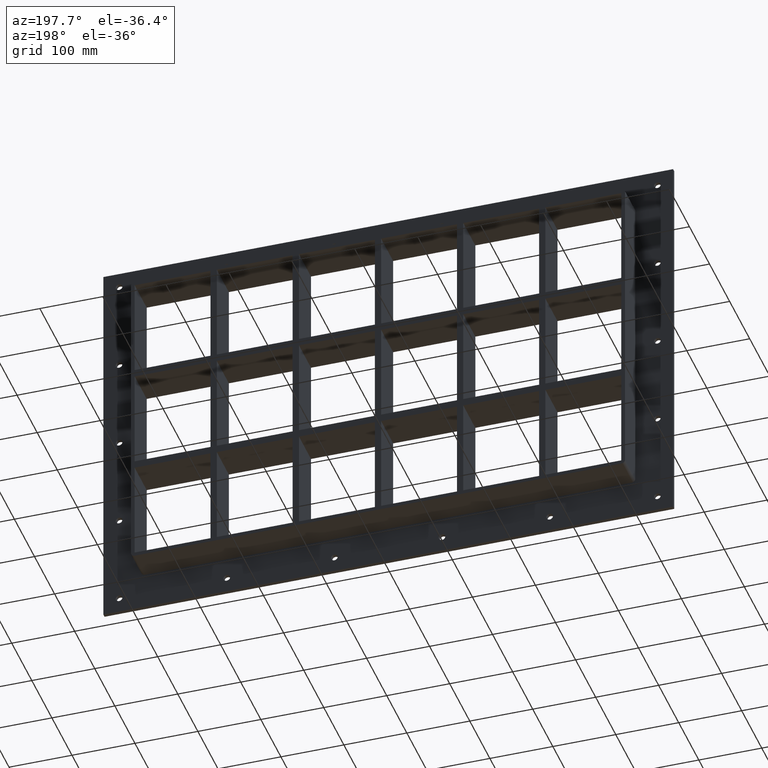
[diagram: clean part render]
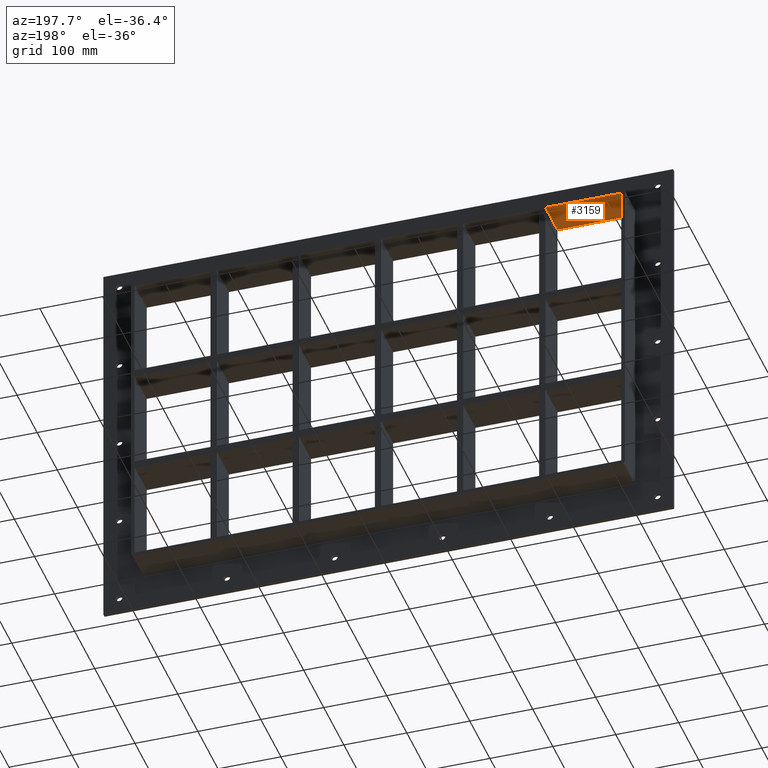
[diagram: same view with one face highlighted and labeled with its STEP entity id]
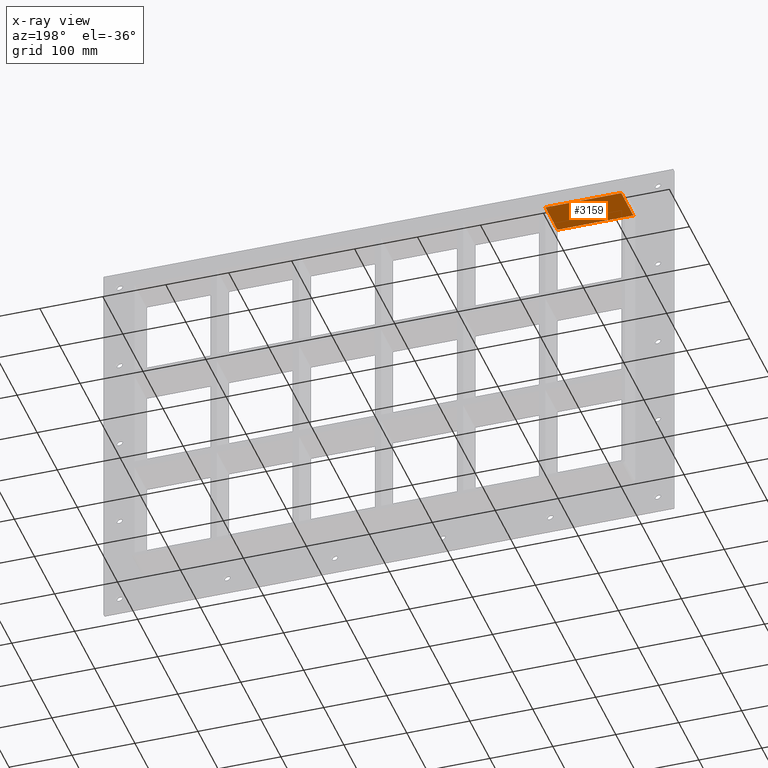
[diagram: x-ray of the same camera — body ghosted, the highlighted face saturated]
A machine part, auxiliary view. The second image highlights one B-rep face of the part: STEP entity #3159.
The next image is the same camera in x-ray: the body ghosted, the highlighted face saturated — about 0% of this face is hidden behind the body in this view.
In plain terms, the highlighted planar face has unit normal (0, 0, 1).
Its self-contained STEP definition (entity closure, byte-faithful):
#1058=CARTESIAN_POINT('',(-386.50000000000006,57.0,251.25));
#1059=VERTEX_POINT('',#1058);
#1066=CARTESIAN_POINT('',(-386.50000000000006,-3.0,251.25));
#1067=VERTEX_POINT('',#1066);
#1068=CARTESIAN_POINT('',(-386.50000000000011,-3.0,251.25));
#1069=DIRECTION('',(0.0,1.0,0.0));
#1070=VECTOR('',#1069,60.0);
#1071=LINE('',#1068,#1070);
#1072=EDGE_CURVE('',#1067,#1059,#1071,.T.);
#1399=CARTESIAN_POINT('',(-266.00000000000216,-3.0,251.25));
#1400=VERTEX_POINT('',#1399);
#1407=CARTESIAN_POINT('',(-266.00000000000216,57.0,251.25));
#1408=VERTEX_POINT('',#1407);
#1409=CARTESIAN_POINT('',(-266.00000000000222,57.000000000000007,251.25));
#1410=DIRECTION('',(0.0,-1.0,0.0));
#1411=VECTOR('',#1410,60.000000000000007);
#1412=LINE('',#1409,#1411);
#1413=EDGE_CURVE('',#1408,#1400,#1412,.T.);
#1924=CARTESIAN_POINT('',(-266.00000000000216,57.0,251.25));
#1925=DIRECTION('',(-1.0,0.0,0.0));
#1926=VECTOR('',#1925,120.4999999999979);
#1927=LINE('',#1924,#1926);
#1928=EDGE_CURVE('',#1408,#1059,#1927,.T.);
#2583=CARTESIAN_POINT('',(-386.50000000000006,-3.0,251.25));
#2584=DIRECTION('',(1.0,0.0,0.0));
#2585=VECTOR('',#2584,120.4999999999979);
#2586=LINE('',#2583,#2585);
#2587=EDGE_CURVE('',#1067,#1400,#2586,.T.);
#3148=CARTESIAN_POINT('',(-386.50000000000011,0.0,251.25));
#3149=DIRECTION('',(0.0,0.0,1.0));
#3150=DIRECTION('',(1.0,0.0,0.0));
#3151=AXIS2_PLACEMENT_3D('',#3148,#3149,#3150);
#3152=PLANE('',#3151);
#3153=ORIENTED_EDGE('',*,*,#1413,.T.);
#3154=ORIENTED_EDGE('',*,*,#2587,.F.);
#3155=ORIENTED_EDGE('',*,*,#1072,.T.);
#3156=ORIENTED_EDGE('',*,*,#1928,.F.);
#3157=EDGE_LOOP('',(#3153,#3154,#3155,#3156));
#3158=FACE_OUTER_BOUND('',#3157,.T.);
#3159=ADVANCED_FACE('',(#3158),#3152,.F.);